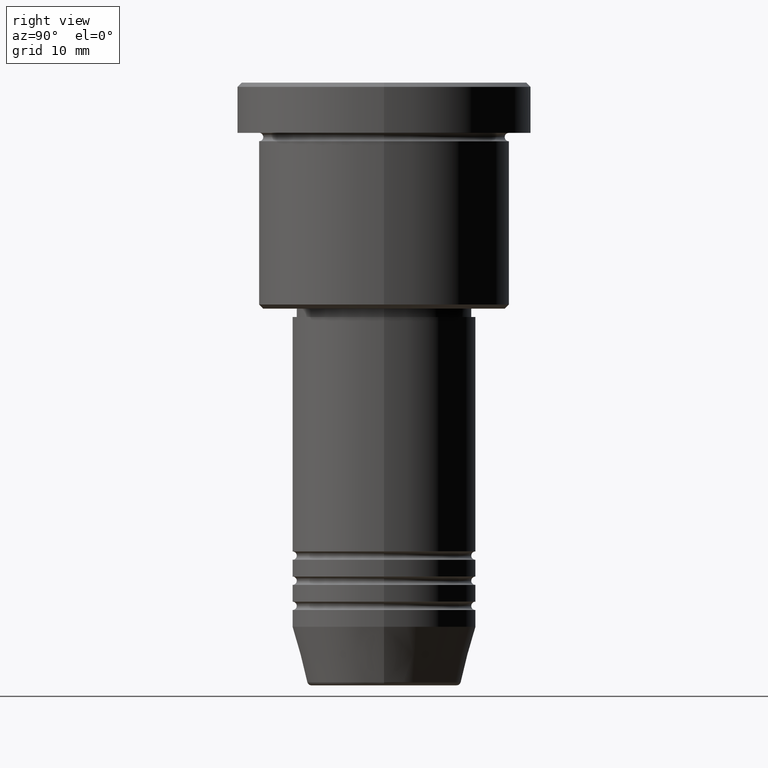
[diagram: clean part render]
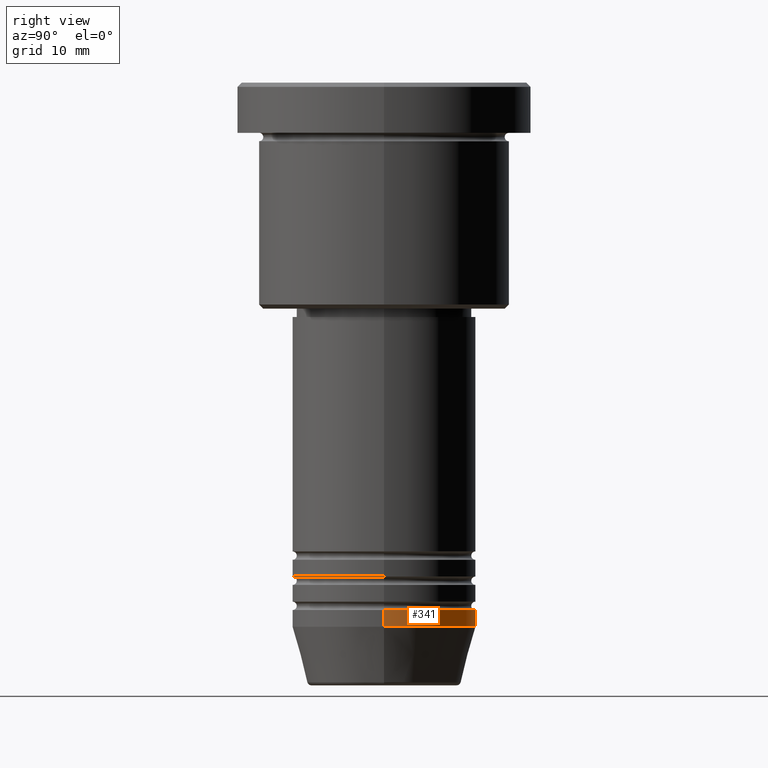
[diagram: same view with one face highlighted and labeled with its STEP entity id]
A machine part, right view. The second image highlights one B-rep face of the part: STEP entity #341.
In plain terms, the highlighted cylindrical surface (partial cylindrical patch) has radius 11 mm, axis along (-0, -0, 1).
Its self-contained STEP definition (entity closure, byte-faithful):
#27 = DIRECTION ( 'NONE',  ( 1.000000000000000000, 0.000000000000000000, 0.000000000000000000 ) ) ;
#53 = VECTOR ( 'NONE', #642, 1000.000000000000000 ) ;
#94 = CIRCLE ( 'NONE', #594, 11.00000000000000000 ) ;
#106 = CIRCLE ( 'NONE', #858, 11.00000000000000000 ) ;
#122 = CARTESIAN_POINT ( 'NONE',  ( 11.00000000000000000, 0.000000000000000000, 0.000000000000000000 ) ) ;
#123 = DIRECTION ( 'NONE',  ( -0.000000000000000000, -0.000000000000000000, 1.000000000000000000 ) ) ;
#196 = CARTESIAN_POINT ( 'NONE',  ( 11.00000000000000000, 0.000000000000000000, -65.00000000000000000 ) ) ;
#244 = EDGE_CURVE ( 'NONE', #1173, #562, #1083, .T. ) ;
#292 = CARTESIAN_POINT ( 'NONE',  ( 0.000000000000000000, 0.000000000000000000, 0.000000000000000000 ) ) ;
#313 = ORIENTED_EDGE ( 'NONE', *, *, #477, .T. ) ;
#319 = VERTEX_POINT ( 'NONE', #196 ) ;
#339 = EDGE_LOOP ( 'NONE', ( #313, #426, #688, #486 ) ) ;
#341 = ADVANCED_FACE ( 'NONE', ( #936 ), #1019, .T. ) ;
#426 = ORIENTED_EDGE ( 'NONE', *, *, #244, .T. ) ;
#457 = AXIS2_PLACEMENT_3D ( 'NONE', #292, #123, #27 ) ;
#460 = VECTOR ( 'NONE', #494, 1000.000000000000000 ) ;
#473 = DIRECTION ( 'NONE',  ( -0.000000000000000000, -0.000000000000000000, 1.000000000000000000 ) ) ;
#477 = EDGE_CURVE ( 'NONE', #319, #1173, #106, .T. ) ;
#479 = CARTESIAN_POINT ( 'NONE',  ( 0.000000000000000000, 0.000000000000000000, -63.00000000000000000 ) ) ;
#486 = ORIENTED_EDGE ( 'NONE', *, *, #640, .F. ) ;
#494 = DIRECTION ( 'NONE',  ( -0.000000000000000000, -0.000000000000000000, 1.000000000000000000 ) ) ;
#532 = CARTESIAN_POINT ( 'NONE',  ( 0.000000000000000000, 0.000000000000000000, -65.00000000000000000 ) ) ;
#538 = CARTESIAN_POINT ( 'NONE',  ( -11.00000000000000000, 1.347111479062088405E-15, 0.000000000000000000 ) ) ;
#549 = DIRECTION ( 'NONE',  ( 1.000000000000000000, 0.000000000000000000, 0.000000000000000000 ) ) ;
#562 = VERTEX_POINT ( 'NONE', #1160 ) ;
#578 = LINE ( 'NONE', #122, #460 ) ;
#584 = VERTEX_POINT ( 'NONE', #638 ) ;
#594 = AXIS2_PLACEMENT_3D ( 'NONE', #479, #473, #549 ) ;
#638 = CARTESIAN_POINT ( 'NONE',  ( 11.00000000000000000, 0.000000000000000000, -63.00000000000000000 ) ) ;
#640 = EDGE_CURVE ( 'NONE', #319, #584, #578, .T. ) ;
#642 = DIRECTION ( 'NONE',  ( -0.000000000000000000, -0.000000000000000000, 1.000000000000000000 ) ) ;
#685 = DIRECTION ( 'NONE',  ( 1.000000000000000000, 0.000000000000000000, 0.000000000000000000 ) ) ;
#688 = ORIENTED_EDGE ( 'NONE', *, *, #1010, .F. ) ;
#730 = CARTESIAN_POINT ( 'NONE',  ( -11.00000000000000000, 1.347111479062088405E-15, -65.00000000000000000 ) ) ;
#858 = AXIS2_PLACEMENT_3D ( 'NONE', #532, #1142, #685 ) ;
#936 = FACE_OUTER_BOUND ( 'NONE', #339, .T. ) ;
#1010 = EDGE_CURVE ( 'NONE', #584, #562, #94, .T. ) ;
#1019 = CYLINDRICAL_SURFACE ( 'NONE', #457, 11.00000000000000000 ) ;
#1083 = LINE ( 'NONE', #538, #53 ) ;
#1142 = DIRECTION ( 'NONE',  ( -0.000000000000000000, -0.000000000000000000, 1.000000000000000000 ) ) ;
#1160 = CARTESIAN_POINT ( 'NONE',  ( -11.00000000000000000, 1.347111479062088405E-15, -63.00000000000000000 ) ) ;
#1173 = VERTEX_POINT ( 'NONE', #730 ) ;